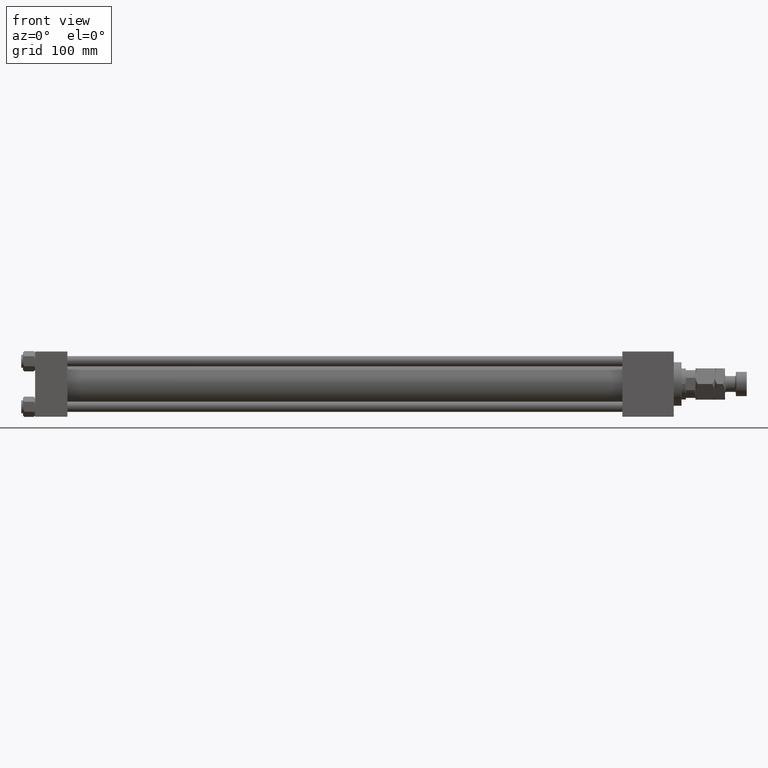
[diagram: clean part render]
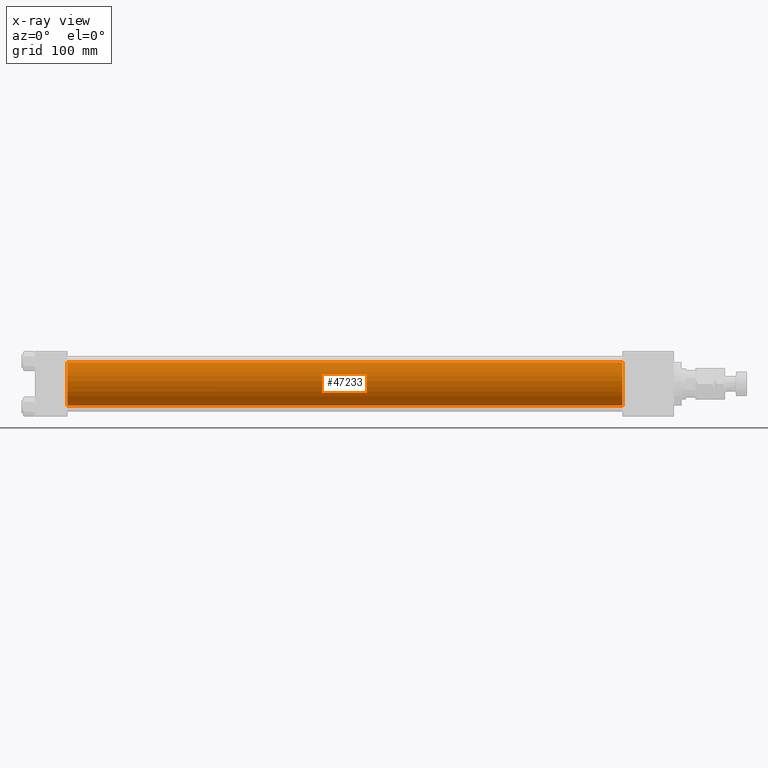
[diagram: x-ray — body ghosted, one internal face saturated and labeled with its STEP entity id]
A machine part, front view, then the same camera in x-ray: the body is ghosted and one INTERNAL B-rep face — a face not visible from any outside direction — is saturated and labeled: STEP entity #47233.
In plain terms, the highlighted cylindrical surface (edge-blend (fillet) strip) has radius 25 mm, axis along (-1, -0, -0).
Its self-contained STEP definition (entity closure, byte-faithful):
#76 = DIRECTION ( 'NONE',  ( -1.000000000000000000, -0.000000000000000000, -0.000000000000000000 ) ) ;
#620 = VECTOR ( 'NONE', #37105, 1000.000000000000000 ) ;
#1564 = CARTESIAN_POINT ( 'NONE',  ( 675.0000000000000000, -2.602085213965210642E-15, 0.000000000000000000 ) ) ;
#1988 = DIRECTION ( 'NONE',  ( 1.000000000000000000, 0.000000000000000000, 0.000000000000000000 ) ) ;
#2526 = DIRECTION ( 'NONE',  ( 0.000000000000000000, 0.000000000000000000, -1.000000000000000000 ) ) ;
#2554 = VERTEX_POINT ( 'NONE', #24766 ) ;
#3823 = CARTESIAN_POINT ( 'NONE',  ( 675.0000000000000000, 4.595317839031724996E-16, -25.00000000000000000 ) ) ;
#5868 = ORIENTED_EDGE ( 'NONE', *, *, #29221, .F. ) ;
#7247 = CARTESIAN_POINT ( 'NONE',  ( 37.00000000000000000, -2.602085213965210642E-15, 25.00000000000000000 ) ) ;
#8808 = VERTEX_POINT ( 'NONE', #3823 ) ;
#9020 = LINE ( 'NONE', #15914, #28771 ) ;
#9134 = LINE ( 'NONE', #9404, #620 ) ;
#9404 = CARTESIAN_POINT ( 'NONE',  ( 675.0000000000000000, 4.595317839031724996E-16, -25.00000000000000000 ) ) ;
#10015 = EDGE_CURVE ( 'NONE', #11030, #29188, #9020, .T. ) ;
#10699 = DIRECTION ( 'NONE',  ( 1.000000000000000000, 0.000000000000000000, 0.000000000000000000 ) ) ;
#11030 = VERTEX_POINT ( 'NONE', #38053 ) ;
#14758 = CIRCLE ( 'NONE', #44193, 25.00000000000000000 ) ;
#15914 = CARTESIAN_POINT ( 'NONE',  ( 675.0000000000000000, -2.602085213965210642E-15, 25.00000000000000000 ) ) ;
#18192 = DIRECTION ( 'NONE',  ( 0.000000000000000000, 0.000000000000000000, 1.000000000000000000 ) ) ;
#24506 = AXIS2_PLACEMENT_3D ( 'NONE', #38387, #10699, #2526 ) ;
#24678 = ORIENTED_EDGE ( 'NONE', *, *, #10015, .F. ) ;
#24766 = CARTESIAN_POINT ( 'NONE',  ( 37.00000000000000000, 4.595317839031724996E-16, -25.00000000000000000 ) ) ;
#28771 = VECTOR ( 'NONE', #76, 1000.000000000000000 ) ;
#29188 = VERTEX_POINT ( 'NONE', #7247 ) ;
#29221 = EDGE_CURVE ( 'NONE', #29188, #2554, #44816, .T. ) ;
#29524 = DIRECTION ( 'NONE',  ( -1.000000000000000000, -0.000000000000000000, -0.000000000000000000 ) ) ;
#30708 = ORIENTED_EDGE ( 'NONE', *, *, #39772, .T. ) ;
#34948 = DIRECTION ( 'NONE',  ( 0.000000000000000000, 0.000000000000000000, -1.000000000000000000 ) ) ;
#37105 = DIRECTION ( 'NONE',  ( -1.000000000000000000, -0.000000000000000000, -0.000000000000000000 ) ) ;
#38053 = CARTESIAN_POINT ( 'NONE',  ( 675.0000000000000000, -2.602085213965210642E-15, 25.00000000000000000 ) ) ;
#38387 = CARTESIAN_POINT ( 'NONE',  ( 37.00000000000000000, -2.602085213965210642E-15, 0.000000000000000000 ) ) ;
#39158 = CARTESIAN_POINT ( 'NONE',  ( 675.0000000000000000, -2.602085213965210642E-15, 0.000000000000000000 ) ) ;
#39772 = EDGE_CURVE ( 'NONE', #11030, #8808, #14758, .T. ) ;
#41907 = CYLINDRICAL_SURFACE ( 'NONE', #51964, 25.00000000000000000 ) ;
#44193 = AXIS2_PLACEMENT_3D ( 'NONE', #39158, #1988, #34948 ) ;
#44816 = CIRCLE ( 'NONE', #24506, 25.00000000000000000 ) ;
#46289 = EDGE_CURVE ( 'NONE', #8808, #2554, #9134, .T. ) ;
#46416 = FACE_OUTER_BOUND ( 'NONE', #49819, .T. ) ;
#47233 = ADVANCED_FACE ( 'NONE', ( #46416 ), #41907, .F. ) ;
#48123 = ORIENTED_EDGE ( 'NONE', *, *, #46289, .T. ) ;
#49819 = EDGE_LOOP ( 'NONE', ( #30708, #48123, #5868, #24678 ) ) ;
#51964 = AXIS2_PLACEMENT_3D ( 'NONE', #1564, #29524, #18192 ) ;